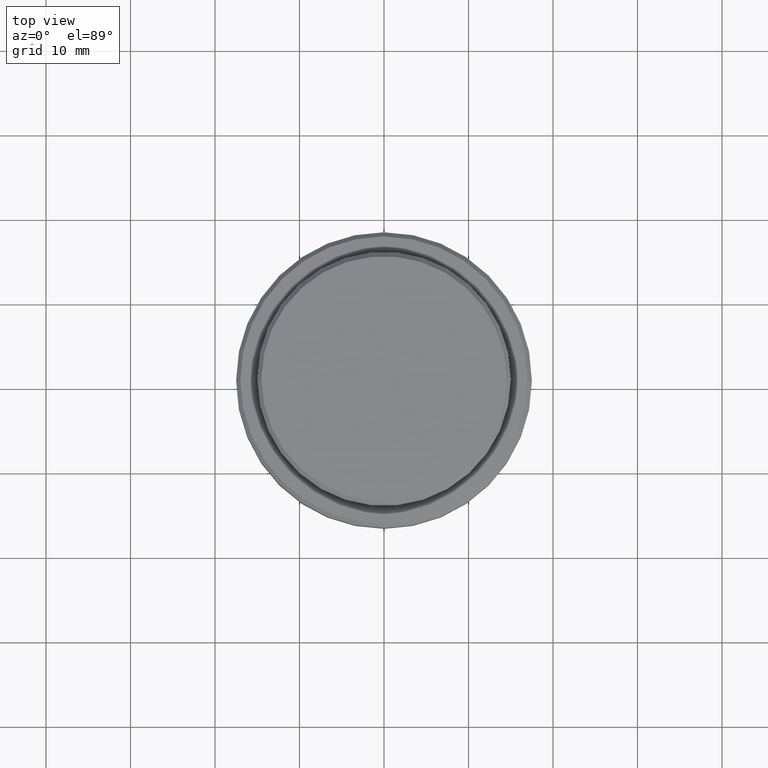
[diagram: clean part render]
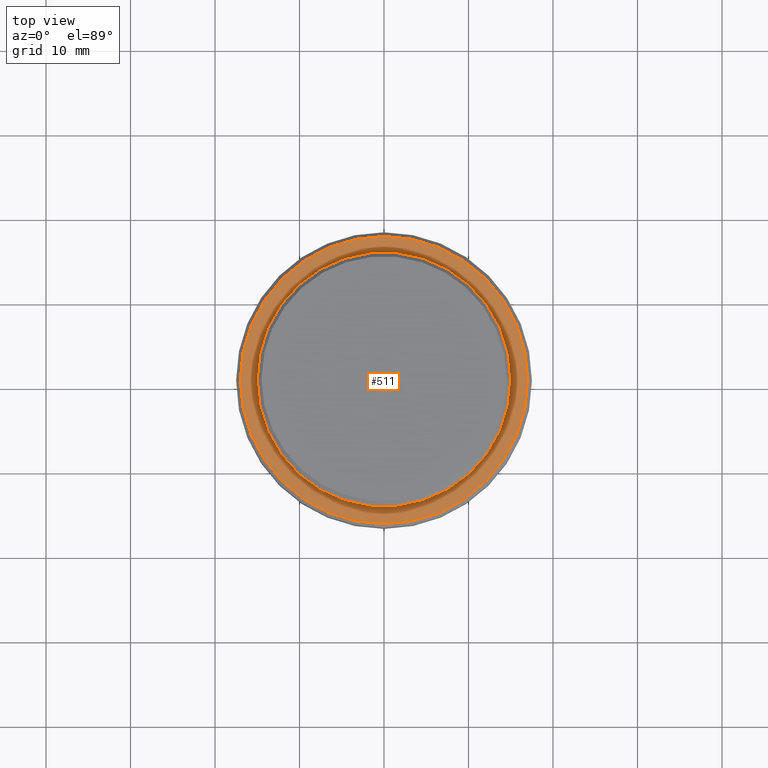
[diagram: same view with one face highlighted and labeled with its STEP entity id]
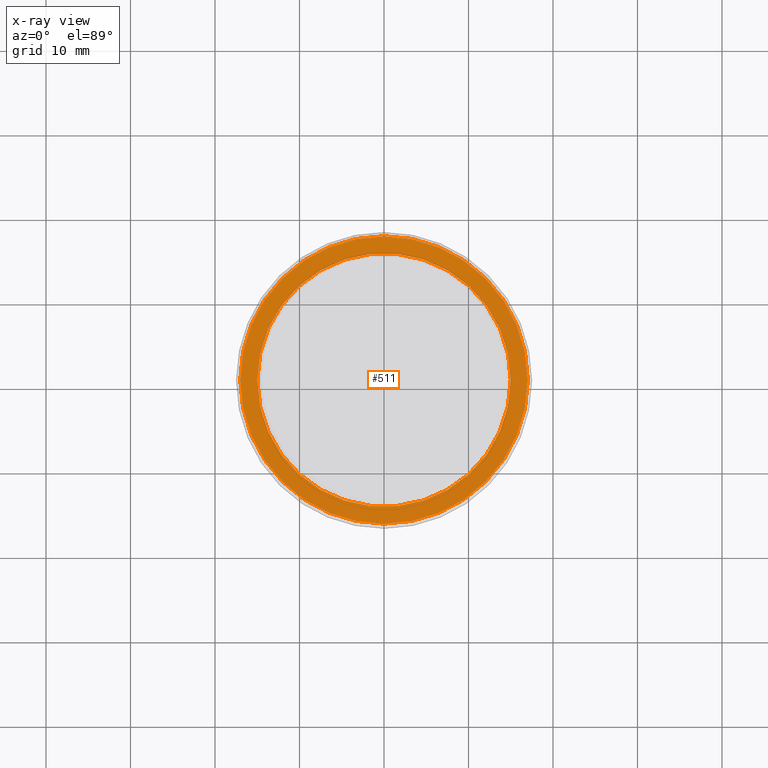
[diagram: x-ray of the same camera — body ghosted, the highlighted face saturated]
A machine part, top view. The second image highlights one B-rep face of the part: STEP entity #511.
The next image is the same camera in x-ray: the body ghosted, the highlighted face saturated — about 0% of this face is hidden behind the body in this view.
In plain terms, the highlighted planar face has unit normal (0, -0, 1).
Its self-contained STEP definition (entity closure, byte-faithful):
#20 = ORIENTED_EDGE ( 'NONE', *, *, #519, .T. ) ;
#36 = PLANE ( 'NONE',  #345 ) ;
#68 = CARTESIAN_POINT ( 'NONE',  ( 0.000000000000000000, 0.000000000000000000, -9.000000000000000000 ) ) ;
#81 = DIRECTION ( 'NONE',  ( -0.000000000000000000, -0.000000000000000000, 1.000000000000000000 ) ) ;
#125 = CARTESIAN_POINT ( 'NONE',  ( 0.000000000000000000, 0.000000000000000000, -9.000000000000000000 ) ) ;
#129 = DIRECTION ( 'NONE',  ( 0.000000000000000000, 0.000000000000000000, -1.000000000000000000 ) ) ;
#137 = FACE_OUTER_BOUND ( 'NONE', #1372, .T. ) ;
#188 = CARTESIAN_POINT ( 'NONE',  ( 0.000000000000000000, 0.000000000000000000, -9.000000000000000000 ) ) ;
#219 = CARTESIAN_POINT ( 'NONE',  ( 14.99999999999999289, 0.000000000000000000, -9.000000000000000000 ) ) ;
#241 = DIRECTION ( 'NONE',  ( 0.000000000000000000, 0.000000000000000000, -1.000000000000000000 ) ) ;
#246 = CARTESIAN_POINT ( 'NONE',  ( -14.99999999999999289, 1.836970198721028800E-15, -9.000000000000000000 ) ) ;
#262 = FACE_BOUND ( 'NONE', #388, .T. ) ;
#289 = EDGE_CURVE ( 'NONE', #593, #935, #851, .T. ) ;
#345 = AXIS2_PLACEMENT_3D ( 'NONE', #1341, #1230, #1243 ) ;
#359 = CARTESIAN_POINT ( 'NONE',  ( 16.99999999999999289, 2.112515728529184067E-15, -9.000000000000000000 ) ) ;
#388 = EDGE_LOOP ( 'NONE', ( #827, #482 ) ) ;
#403 = AXIS2_PLACEMENT_3D ( 'NONE', #125, #129, #1346 ) ;
#419 = DIRECTION ( 'NONE',  ( -0.000000000000000000, -0.000000000000000000, 1.000000000000000000 ) ) ;
#482 = ORIENTED_EDGE ( 'NONE', *, *, #1222, .T. ) ;
#511 = ADVANCED_FACE ( 'NONE', ( #137, #262 ), #36, .T. ) ;
#519 = EDGE_CURVE ( 'NONE', #935, #593, #964, .T. ) ;
#593 = VERTEX_POINT ( 'NONE', #359 ) ;
#624 = VERTEX_POINT ( 'NONE', #219 ) ;
#708 = DIRECTION ( 'NONE',  ( 1.000000000000000000, 0.000000000000000000, 0.000000000000000000 ) ) ;
#721 = CARTESIAN_POINT ( 'NONE',  ( -16.99999999999999289, 0.000000000000000000, -9.000000000000000000 ) ) ;
#735 = EDGE_CURVE ( 'NONE', #624, #1241, #810, .T. ) ;
#810 = CIRCLE ( 'NONE', #877, 14.99999999999999289 ) ;
#827 = ORIENTED_EDGE ( 'NONE', *, *, #735, .T. ) ;
#851 = CIRCLE ( 'NONE', #937, 16.99999999999999289 ) ;
#877 = AXIS2_PLACEMENT_3D ( 'NONE', #1023, #241, #1249 ) ;
#921 = CIRCLE ( 'NONE', #403, 14.99999999999999289 ) ;
#935 = VERTEX_POINT ( 'NONE', #721 ) ;
#937 = AXIS2_PLACEMENT_3D ( 'NONE', #68, #419, #708 ) ;
#964 = CIRCLE ( 'NONE', #1133, 16.99999999999999289 ) ;
#1023 = CARTESIAN_POINT ( 'NONE',  ( 0.000000000000000000, 0.000000000000000000, -9.000000000000000000 ) ) ;
#1133 = AXIS2_PLACEMENT_3D ( 'NONE', #188, #81, #1180 ) ;
#1180 = DIRECTION ( 'NONE',  ( 1.000000000000000000, 0.000000000000000000, 0.000000000000000000 ) ) ;
#1222 = EDGE_CURVE ( 'NONE', #1241, #624, #921, .T. ) ;
#1230 = DIRECTION ( 'NONE',  ( 0.000000000000000000, -0.000000000000000000, 1.000000000000000000 ) ) ;
#1241 = VERTEX_POINT ( 'NONE', #246 ) ;
#1243 = DIRECTION ( 'NONE',  ( 1.000000000000000000, 0.000000000000000000, 0.000000000000000000 ) ) ;
#1249 = DIRECTION ( 'NONE',  ( 1.000000000000000000, 0.000000000000000000, 0.000000000000000000 ) ) ;
#1341 = CARTESIAN_POINT ( 'NONE',  ( 0.000000000000000000, 14.49999999999999467, -9.000000000000000000 ) ) ;
#1346 = DIRECTION ( 'NONE',  ( 1.000000000000000000, 0.000000000000000000, 0.000000000000000000 ) ) ;
#1372 = EDGE_LOOP ( 'NONE', ( #20, #1388 ) ) ;
#1388 = ORIENTED_EDGE ( 'NONE', *, *, #289, .T. ) ;